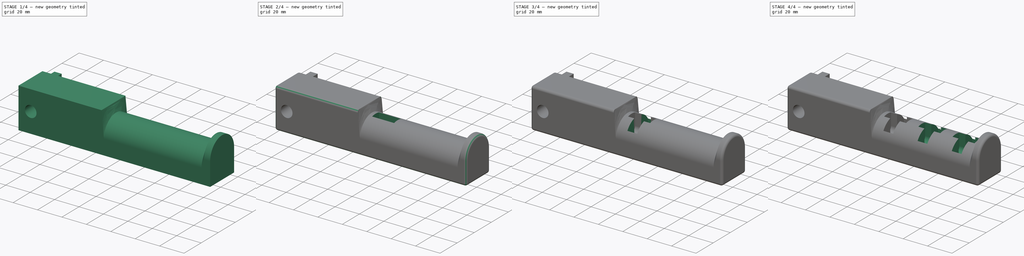
[diagram: build sequence overview — one tinted view per stage of 4, left to right]
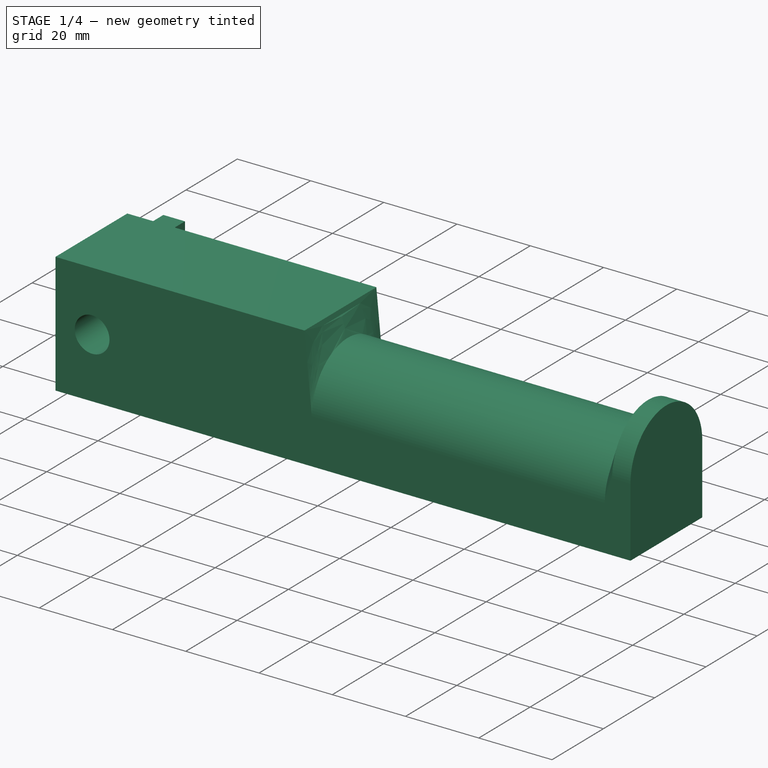
[diagram: stage 1 of 4 — iso view after this stage's code; geometry added in this stage tinted green]
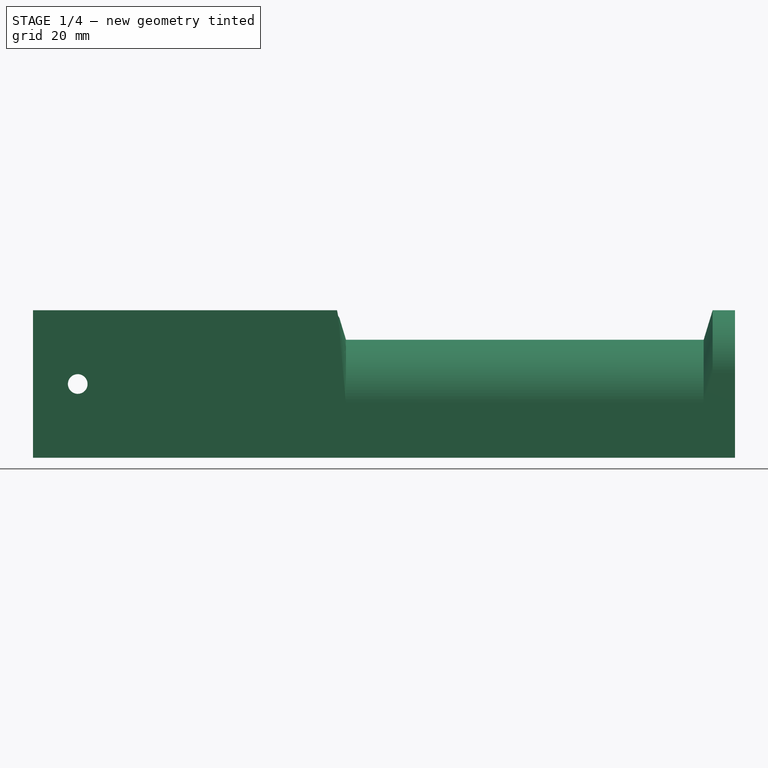
[diagram: stage 1 of 4 — front view after this stage's code; geometry added in this stage tinted green]
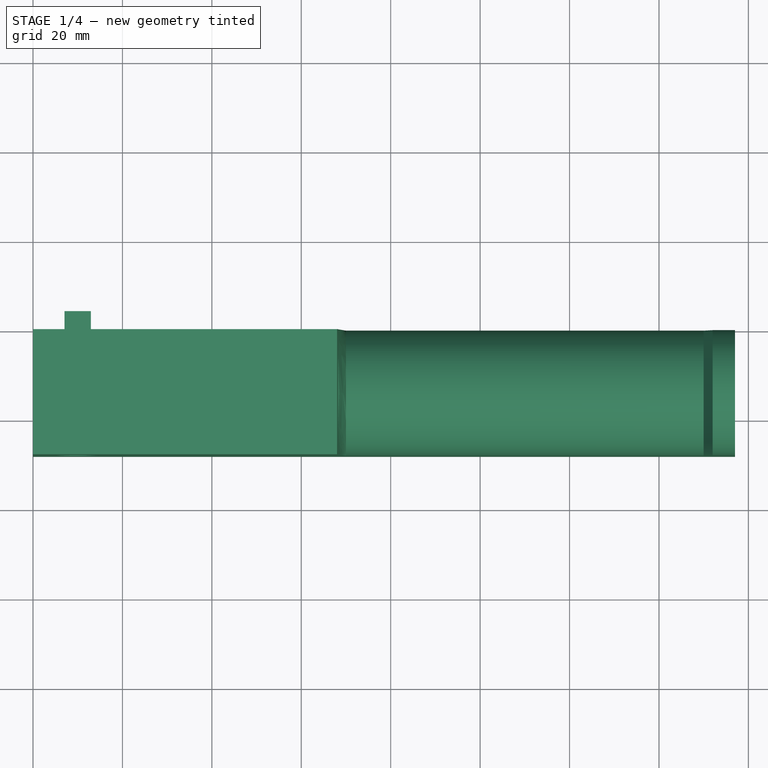
[diagram: stage 1 of 4 — top view after this stage's code; geometry added in this stage tinted green]
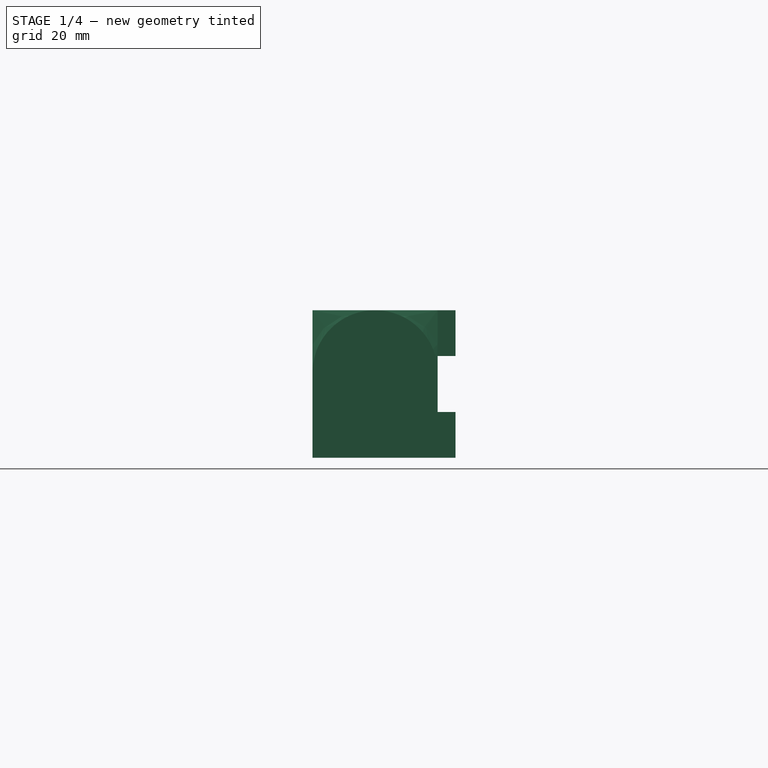
[diagram: stage 1 of 4 — right view after this stage's code; geometry added in this stage tinted green]
FCSTD DOCUMENT  (FreeCAD 0.18.4R)
Label: SpoolHolder
License: All rights reserved
LicenseURL: http://en.wikipedia.org/wiki/All_rights_reserved
objects: Sketcher::SketchObject×18, PartDesign::Pocket×8, PartDesign::Pad×2, PartDesign::Fillet×2, PartDesign::Body×2, PartDesign::AdditiveLoft×1, PartDesign::Chamfer×1, PartDesign::Plane×1, PartDesign::ShapeBinder×1, App::Part×1
note: 47 computed .brp shape members not serialized (recipe doc carries the construction recipe); baked Part::Feature solids carry a one-line shape summary decoded from their .brp

FEATURE [Sketcher::SketchObject] Sketch
  MapMode = 5
  Placement = pos=(0,0,0) rot=(0.57735,0.57735,0.57735;2.0944rad)
  Support = -> [YZ_Plane001]
  sketch-geometry (20):
    g0: LineSegment StartX=-28 StartY=17.3 StartZ=0 EndX=0 EndY=17.3 EndZ=0
    g1: LineSegment StartX=0 StartY=17.3 StartZ=0 EndX=0 EndY=-15.7 EndZ=0
    g2: LineSegment StartX=0 StartY=-15.7 StartZ=0 EndX=-28 EndY=-15.7 EndZ=0
    g3: LineSegment StartX=-28 StartY=-15.7 StartZ=0 EndX=-28 EndY=17.3 EndZ=0
    g4: LineSegment [constr] StartX=-14 StartY=17.3 StartZ=0 EndX=-14 EndY=-12.7 EndZ=0
    g5: Circle [constr] CenterX=-14 CenterY=-12.7 CenterZ=0 NormalX=0 NormalY=0 NormalZ=1 AngleXU=0 Radius=25
    g6: Circle CenterX=-14 CenterY=0.3 CenterZ=0 NormalX=0 NormalY=0 NormalZ=1 AngleXU=0 Radius=4
    g7: Circle CenterX=-14 CenterY=0.3 CenterZ=0 NormalX=0 NormalY=0 NormalZ=1 AngleXU=0 Radius=12
    g8: ArcOfCircle CenterX=-14 CenterY=-3.3 CenterZ=0 NormalX=0 NormalY=0 NormalZ=1 AngleXU=0 Radius=14 StartAngle=1e-16 EndAngle=3.14159
    g9: LineSegment [constr] StartX=-26 StartY=17.3 StartZ=0 EndX=-26 EndY=-15.7 EndZ=0
    g10: GeomPoint X=-14 Y=10.7 Z=0
    g11: GeomPoint X=-14 Y=12.3 Z=0
    g12: GeomPoint X=-14 Y=-15.7 Z=0
    g13: GeomPoint X=-14 Y=-11.7 Z=0
    g14: ArcOfCircle CenterX=-14 CenterY=3.3 CenterZ=0 NormalX=0 NormalY=0 NormalZ=1 AngleXU=0 Radius=14 StartAngle=1e-16 EndAngle=3.14159
    g15: LineSegment StartX=-18 StartY=10.1164 StartZ=0 EndX=-18 EndY=0.3 EndZ=0
    g16: LineSegment StartX=-10 StartY=10.1164 StartZ=0 EndX=-10 EndY=0.3 EndZ=0
    g17: GeomPoint X=0 Y=0 Z=0
    g18: LineSegment StartX=-26 StartY=3.9111 StartZ=0 EndX=-26 EndY=0.3 EndZ=0
    g19: LineSegment StartX=-2 StartY=3.9111 StartZ=0 EndX=-2 EndY=0.3 EndZ=0
  constraints (52):
    c: Horizontal(g0)
    c: Horizontal(g2)
    c: Vertical(g1)
    c: Vertical(g3)
    c: PointOnObject(g4,g0)
    c: Symmetric(g0,g0,g4)
    c: Coincident(g5,g4)
    c: Radius(g5) = 25
    c: PointOnObject(g6,g4)
    c: Coincident(g7,g6)
    c: Radius(g7) = 12
    c: Radius(g6) = 4
    c: Tangent(g5,g7)
    c: Tangent(g8,g1) = 1.5708
    c: Tangent(g8,g3) = 1.5708
    c: PointOnObject(g9,g0)
    c: PointOnObject(g9,g2)
    c: Vertical(g9)
    c: Tangent(g9,g7)
    c: DistanceX(g3,g9) = 2
    c: PointOnObject(g10,g8)
    c: PointOnObject(g11,g7)
    c: PointOnObject(g11,g4)
    c: PointOnObject(g10,g4)
    c: DistanceY(g10,g11) = 1.6
    c: DistanceY(g11,g4) = 5
    c: PointOnObject(g12,g2)
    c: PointOnObject(g12,g4)
    c: PointOnObject(g13,g7)
    c: PointOnObject(g13,g4)
    c: DistanceY(g12,g13) = 4
    c: Tangent(g14,g1) = 1.5708
    c: Tangent(g14,g3) = 1.5708
    c: Tangent(g14,g0)
    c: Coincident(g2,g3)
    c: Coincident(g1,g2)
    c: Coincident(g0,g1)
    c: Coincident(g0,g3)
    c: PointOnObject(g15,g8)
    c: Vertical(g15)
    c: PointOnObject(g16,g8)
    c: Vertical(g16)
    c: Tangent(g16,g6) = 1.5708
    c: Tangent(g15,g6) = -1.5708
    c: Symmetric(g14,g8,g17)
    c: Coincident(g17,g-1)  '__ANCHOR__'
    c: PointOnObject(g18,g8)
    c: Vertical(g18)
    c: PointOnObject(g19,g8)
    c: Vertical(g19)
    c: Tangent(g19,g7) = 1.5708
    c: Tangent(g18,g7) = -1.5708
FEATURE [Sketcher::SketchObject] Sketch001
  ExternalGeometry = -> [Sketch]
  MapMode = 5
  Placement = pos=(0,0,0) rot=(0.57735,0.57735,0.57735;2.0944rad)
  Support = -> [YZ_Plane]
  sketch-geometry (4):
    g0: LineSegment StartX=0 StartY=-15.7 StartZ=0 EndX=-28 EndY=-15.7 EndZ=0
    g1: LineSegment StartX=-28 StartY=-15.7 StartZ=0 EndX=-28 EndY=17.3 EndZ=0
    g2: LineSegment StartX=0 StartY=-15.7 StartZ=0 EndX=0 EndY=17.3 EndZ=0
    g3: LineSegment StartX=-28 StartY=17.3 StartZ=0 EndX=0 EndY=17.3 EndZ=0
  constraints (8):
    c: Coincident(g-3,g0)
    c: Coincident(g0,g-3)
    c: Coincident(g0,g1)
    c: Coincident(g0,g2)
    c: Coincident(g1,g-4)
    c: Coincident(g2,g-4)
    c: Coincident(g3,g1)
    c: Coincident(g3,g2)
FEATURE [Sketcher::SketchObject] Sketch002
  AttachmentOffset = pos=(0,0,68) rot=(0,0,1;0rad)
  ExternalGeometry = -> [Sketch]
  MapMode = 5
  Placement = pos=(68,-1.51e-14,1.51e-14) rot=(0.57735,0.57735,0.57735;2.0944rad)
  Support = -> [YZ_Plane001]
  sketch-geometry (4):
    g0: LineSegment StartX=0 StartY=-15.7 StartZ=0 EndX=-28 EndY=-15.7 EndZ=0
    g1: LineSegment StartX=-28 StartY=-15.7 StartZ=0 EndX=-28 EndY=17.3 EndZ=0
    g2: LineSegment StartX=0 StartY=-15.7 StartZ=0 EndX=0 EndY=17.3 EndZ=0
    g3: LineSegment StartX=-28 StartY=17.3 StartZ=0 EndX=0 EndY=17.3 EndZ=0
  constraints (8):
    c: Coincident(g-3,g0)
    c: Coincident(g0,g-3)
    c: Coincident(g0,g1)
    c: Coincident(g0,g2)
    c: Coincident(g1,g-4)
    c: Coincident(g2,g-4)
    c: Coincident(g3,g1)
    c: Coincident(g3,g2)
FEATURE [Sketcher::SketchObject] Sketch003
  AttachmentOffset = pos=(0,0,70) rot=(0,0,1;0rad)
  ExternalGeometry = -> [Sketch]
  MapMode = 5
  Placement = pos=(70,-1.55e-14,1.55e-14) rot=(0.57735,0.57735,0.57735;2.0944rad)
  Support = -> [YZ_Plane]
  sketch-geometry (4):
    g0: ArcOfCircle CenterX=-14 CenterY=-3.3 CenterZ=0 NormalX=0 NormalY=0 NormalZ=1 AngleXU=0 Radius=14 StartAngle=0 EndAngle=3.14159
    g1: LineSegment StartX=-28 StartY=-3.3 StartZ=0 EndX=-28 EndY=-15.7 EndZ=0
    g2: LineSegment StartX=-28 StartY=-15.7 StartZ=0 EndX=0 EndY=-15.7 EndZ=0
    g3: LineSegment StartX=0 StartY=-15.7 StartZ=0 EndX=-7.1e-15 EndY=-3.3 EndZ=0
  constraints (9):
    c: Coincident(g0,g1)
    c: Coincident(g0,g3)
    c: Coincident(g2,g3)
    c: Coincident(g1,g2)
    c: Coincident(g0,g-4)
    c: Coincident(g0,g-4)
    c: Coincident(g0,g-4)
    c: Coincident(g2,g-3)
    c: Coincident(g1,g-3)
FEATURE [Sketcher::SketchObject] Sketch004
  AttachmentOffset = pos=(0,0,150) rot=(0,0,1;0rad)
  ExternalGeometry = -> [Sketch]
  MapMode = 5
  Placement = pos=(150,-3.33e-14,3.33e-14) rot=(0.57735,0.57735,0.57735;2.0944rad)
  Support = -> [YZ_Plane001]
  sketch-geometry (4):
    g0: ArcOfCircle CenterX=-14 CenterY=-3.3 CenterZ=0 NormalX=0 NormalY=0 NormalZ=1 AngleXU=0 Radius=14 StartAngle=0 EndAngle=3.14159
    g1: LineSegment StartX=-28 StartY=-3.3 StartZ=0 EndX=-28 EndY=-15.7 EndZ=0
    g2: LineSegment StartX=-28 StartY=-15.7 StartZ=0 EndX=0 EndY=-15.7 EndZ=0
    g3: LineSegment StartX=0 StartY=-15.7 StartZ=0 EndX=-1.6e-14 EndY=-3.3 EndZ=0
  constraints (9):
    c: Coincident(g0,g1)
    c: Coincident(g0,g3)
    c: Coincident(g1,g2)
    c: Coincident(g2,g3)
    c: Coincident(g0,g-4)
    c: Coincident(g0,g-4)
    c: Coincident(g0,g-4)
    c: Coincident(g1,g-3)
    c: Coincident(g2,g-3)
FEATURE [Sketcher::SketchObject] Sketch005
  AttachmentOffset = pos=(0,0,152) rot=(0,0,1;0rad)
  ExternalGeometry = -> [Sketch]
  MapMode = 5
  Placement = pos=(152,-3.38e-14,3.38e-14) rot=(0.57735,0.57735,0.57735;2.0944rad)
  Support = -> [YZ_Plane]
  expr: AttachmentOffset.Base.z = Sketch004.AttachmentOffset.Base.z + 2mm
  sketch-geometry (4):
    g0: ArcOfCircle CenterX=-14 CenterY=3.3 CenterZ=0 NormalX=0 NormalY=0 NormalZ=1 AngleXU=0 Radius=14 StartAngle=1e-16 EndAngle=3.14159
    g1: LineSegment StartX=-28 StartY=3.3 StartZ=0 EndX=-28 EndY=-15.7 EndZ=0
    g2: LineSegment StartX=-28 StartY=-15.7 StartZ=0 EndX=0 EndY=-15.7 EndZ=0
    g3: LineSegment StartX=0 StartY=-15.7 StartZ=0 EndX=-1.6e-14 EndY=3.3 EndZ=0
  constraints (9):
    c: Coincident(g0,g1)
    c: Coincident(g0,g3)
    c: Coincident(g1,g2)
    c: Coincident(g1,g-3)
    c: Coincident(g2,g3)
    c: Coincident(g2,g-3)
    c: Coincident(g0,g-4)
    c: Coincident(g-4,g0)
    c: Coincident(g0,g-4)
FEATURE [Sketcher::SketchObject] Sketch006
  AttachmentOffset = pos=(0,0,157) rot=(0,0,1;0rad)
  ExternalGeometry = -> [Sketch]
  MapMode = 5
  Placement = pos=(157,-3.49e-14,3.49e-14) rot=(0.57735,0.57735,0.57735;2.0944rad)
  Support = -> [YZ_Plane001]
  expr: AttachmentOffset.Base.z = Sketch005.AttachmentOffset.Base.z + 5mm
  sketch-geometry (4):
    g0: ArcOfCircle CenterX=-14 CenterY=3.3 CenterZ=0 NormalX=0 NormalY=0 NormalZ=1 AngleXU=0 Radius=14 StartAngle=1e-16 EndAngle=3.14159
    g1: LineSegment StartX=-28 StartY=3.3 StartZ=0 EndX=-28 EndY=-15.7 EndZ=0
    g2: LineSegment StartX=-28 StartY=-15.7 StartZ=0 EndX=0 EndY=-15.7 EndZ=0
    g3: LineSegment StartX=0 StartY=-15.7 StartZ=0 EndX=-1.78e-14 EndY=3.3 EndZ=0
  constraints (9):
    c: Coincident(g0,g1)
    c: Coincident(g0,g3)
    c: Coincident(g1,g2)
    c: Coincident(g1,g-3)
    c: Coincident(g2,g3)
    c: Coincident(g2,g-3)
    c: Coincident(g0,g-4)
    c: Coincident(g0,g-4)
    c: Coincident(g0,g-4)
FEATURE [PartDesign::AdditiveLoft] AdditiveLoft
  Closed = true
  Placement = pos=(0,0,0) rot=(0.57735,0.57735,0.57735;2.0944rad)
  Profile = -> Sketch001
  Refine = true
  Ruled = true
  Sections = -> [Sketch002,Sketch003,Sketch004,Sketch005,Sketch006]
FEATURE [Sketcher::SketchObject] Sketch007
  ExternalGeometry = -> [Sketch]
  MapMode = 5
  Placement = pos=(0,0,0) rot=(1,0,0;1.5708rad)
  Support = -> [XZ_Plane001]
  sketch-geometry (19):
    g0: LineSegment StartX=20 StartY=-15.7 StartZ=0 EndX=20 EndY=17.3 EndZ=0
    g1: LineSegment StartX=-6.9e-15 StartY=17.3 StartZ=0 EndX=0 EndY=-15.7 EndZ=0
    g2: LineSegment [constr] StartX=10 StartY=17.3 StartZ=0 EndX=10 EndY=-15.7 EndZ=0
    g3: LineSegment StartX=7.05 StartY=17.3 StartZ=0 EndX=12.95 EndY=17.3 EndZ=0
    g4: LineSegment StartX=12.95 StartY=17.3 StartZ=0 EndX=12.95 EndY=7.05 EndZ=0
    g5: LineSegment StartX=12.95 StartY=7.05 StartZ=0 EndX=7.05 EndY=7.05 EndZ=0
    g6: LineSegment StartX=7.05 StartY=7.05 StartZ=0 EndX=7.05 EndY=17.3 EndZ=0
    g7: LineSegment StartX=7.05 StartY=-15.7 StartZ=0 EndX=12.95 EndY=-15.7 EndZ=0
    g8: LineSegment StartX=12.95 StartY=-15.7 StartZ=0 EndX=12.95 EndY=-5.45 EndZ=0
    g9: LineSegment StartX=12.95 StartY=-5.45 StartZ=0 EndX=7.05 EndY=-5.45 EndZ=0
    g10: LineSegment StartX=7.05 StartY=-5.45 StartZ=0 EndX=7.05 EndY=-15.7 EndZ=0
    g11: LineSegment [constr] StartX=7.05 StartY=7.05 StartZ=0 EndX=7.05 EndY=-5.45 EndZ=0
    g12: LineSegment [constr] StartX=12.95 StartY=7.05 StartZ=0 EndX=12.95 EndY=-5.45 EndZ=0
    g13: LineSegment StartX=-6.9e-15 StartY=17.3 StartZ=0 EndX=7.05 EndY=17.3 EndZ=0
    g14: LineSegment StartX=12.95 StartY=17.3 StartZ=0 EndX=20 EndY=17.3 EndZ=0
    g15: LineSegment StartX=0 StartY=-15.7 StartZ=0 EndX=7.05 EndY=-15.7 EndZ=0
    g16: LineSegment StartX=12.95 StartY=-15.7 StartZ=0 EndX=20 EndY=-15.7 EndZ=0
    g17: Circle CenterX=10 CenterY=0.8 CenterZ=0 NormalX=0 NormalY=0 NormalZ=1 AngleXU=0 Radius=2.2
    g18: Circle CenterX=10 CenterY=0.8 CenterZ=0 NormalX=0 NormalY=0 NormalZ=1 AngleXU=0 Radius=4.75
  constraints (48):
    c: Vertical(g0)
    c: DistanceX(g1,g0) = 20
    c: Coincident(g3,g4)
    c: Coincident(g4,g5)
    c: Coincident(g5,g6)
    c: Coincident(g6,g3)
    c: Horizontal(g5)
    c: Vertical(g4)
    c: Vertical(g6)
    c: Coincident(g7,g8)
    c: Coincident(g8,g9)
    c: Coincident(g9,g10)
    c: Coincident(g10,g7)
    c: Horizontal(g7)
    c: Horizontal(g9)
    c: Vertical(g8)
    c: Vertical(g10)
    c: Coincident(g11,g5)
    c: Coincident(g11,g9)
    c: Vertical(g11)
    c: Coincident(g12,g4)
    c: Coincident(g12,g8)
    c: Vertical(g12)
    c: Symmetric(g3,g3,g2)
    c: Symmetric(g1,g0,g2)
    c: Equal(g10,g6)
    c: DistanceX(g3,g3) = 5.9
    c: Coincident(g13,g1)
    c: Coincident(g13,g3)
    c: Horizontal(g13)
    c: Coincident(g14,g3)
    c: Coincident(g14,g0)
    c: Horizontal(g14)
    c: Coincident(g15,g1)
    c: Coincident(g15,g7)
    c: Horizontal(g15)
    c: Coincident(g16,g7)
    c: Coincident(g16,g0)
    c: Horizontal(g16)
    c: DistanceY(g11,g11) = 12.5
    c: Coincident(g1,g-3)
    c: Coincident(g-4,g1)
    c: PointOnObject(g2,g7)
    c: PointOnObject(g2,g3)
    c: Radius(g17) = 2.2
    c: Symmetric(g2,g2,g17)
    c: Coincident(g18,g17)
    c: Radius(g18) = 4.75
FEATURE [Sketcher::SketchObject] Sketch008
  ExternalGeometry = -> [Sketch007]
  MapMode = 5
  Placement = pos=(0,0,0) rot=(1,0,0;1.5708rad)
  Support = -> [XZ_Plane]
  sketch-geometry (8):
    g0: LineSegment StartX=7.05 StartY=17.3 StartZ=0 EndX=12.95 EndY=17.3 EndZ=0
    g1: LineSegment StartX=12.95 StartY=17.3 StartZ=0 EndX=12.95 EndY=7.05 EndZ=0
    g2: LineSegment StartX=12.95 StartY=7.05 StartZ=0 EndX=7.05 EndY=7.05 EndZ=0
    g3: LineSegment StartX=7.05 StartY=7.05 StartZ=0 EndX=7.05 EndY=17.3 EndZ=0
    g4: LineSegment StartX=7.05 StartY=-5.45 StartZ=0 EndX=12.95 EndY=-5.45 EndZ=0
    g5: LineSegment StartX=12.95 StartY=-5.45 StartZ=0 EndX=12.95 EndY=-15.7 EndZ=0
    g6: LineSegment StartX=12.95 StartY=-15.7 StartZ=0 EndX=7.05 EndY=-15.7 EndZ=0
    g7: LineSegment StartX=7.05 StartY=-15.7 StartZ=0 EndX=7.05 EndY=-5.45 EndZ=0
  constraints (20):
    c: Coincident(g0,g1)
    c: Coincident(g1,g2)
    c: Coincident(g2,g3)
    c: Coincident(g3,g0)
    c: Horizontal(g0)
    c: Horizontal(g2)
    c: Vertical(g1)
    c: Vertical(g3)
    c: Coincident(g0,g-5)
    c: Coincident(g1,g-6)
    c: Coincident(g4,g5)
    c: Coincident(g5,g6)
    c: Coincident(g6,g7)
    c: Coincident(g7,g4)
    c: Horizontal(g4)
    c: Horizontal(g6)
    c: Vertical(g5)
    c: Vertical(g7)
    c: Coincident(g4,g-3)
    c: Coincident(g5,g-4)
FEATURE [PartDesign::Pad] Pad
  BaseFeature = -> AdditiveLoft
  Length = 4
  Length2 = 100
  Placement = pos=(0,0,0) rot=(0.57735,0.57735,0.57735;2.0944rad)
  Profile = -> Sketch008
  Reversed = true
  Type = 0
FEATURE [Sketcher::SketchObject] Sketch009
  ExternalGeometry = -> [Sketch007]
  MapMode = 5
  Placement = pos=(0,0,0) rot=(1,0,0;1.5708rad)
  Support = -> [XZ_Plane001]
  sketch-geometry (1):
    g0: Circle CenterX=10 CenterY=0.8 CenterZ=0 NormalX=0 NormalY=0 NormalZ=1 AngleXU=0 Radius=2.2
  constraints (2):
    c: Coincident(g0,g-3)
    c: Equal(g0,g-3)
FEATURE [PartDesign::Pocket] Pocket
  BaseFeature = -> Pad
  Length = 5
  Length2 = 100
  Placement = pos=(0,0,0) rot=(0.57735,0.57735,0.57735;2.0944rad)
  Profile = -> Sketch009
  Reversed = true
  Type = 1
FEATURE [Sketcher::SketchObject] Sketch010
  AttachmentOffset = pos=(0,0,4) rot=(0,0,1;0rad)
  ExternalGeometry = -> [Sketch007]
  MapMode = 5
  Placement = pos=(0,-4,-9e-16) rot=(1,0,0;1.5708rad)
  Support = -> [XZ_Plane]
  sketch-geometry (1):
    g0: Circle CenterX=10 CenterY=0.8 CenterZ=0 NormalX=0 NormalY=0 NormalZ=1 AngleXU=0 Radius=4.75
  constraints (2):
    c: Coincident(g0,g-3)
    c: Equal(g0,g-3)
FEATURE [PartDesign::Pocket] Pocket001
  BaseFeature = -> Pocket
  Length = 5
  Length2 = 100
  Placement = pos=(0,0,0) rot=(0.57735,0.57735,0.57735;2.0944rad)
  Profile = -> Sketch010
  Refine = true
  Reversed = true
  Type = 1
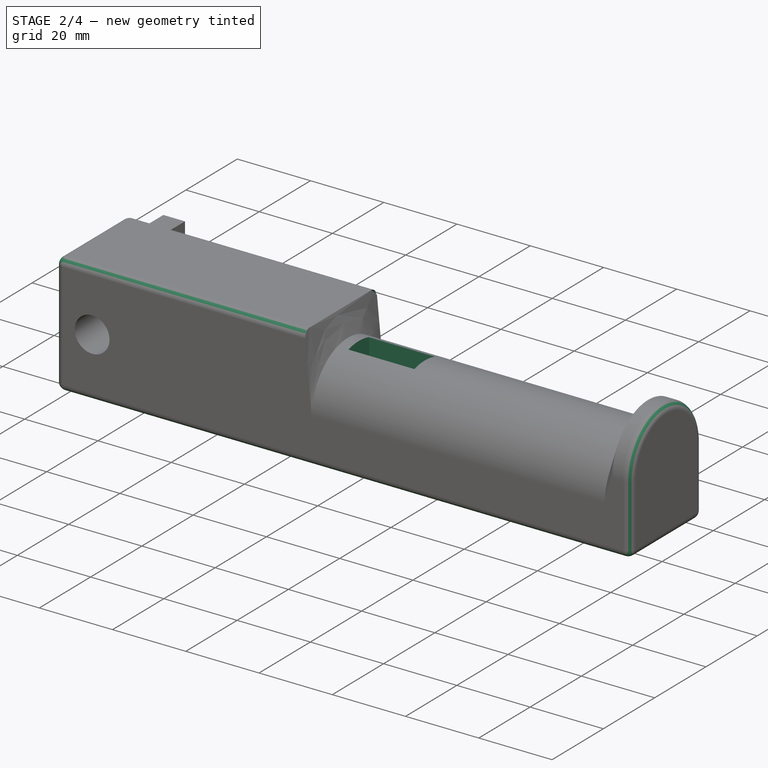
[diagram: stage 2 of 4 — iso view after this stage's code; geometry added in this stage tinted green]
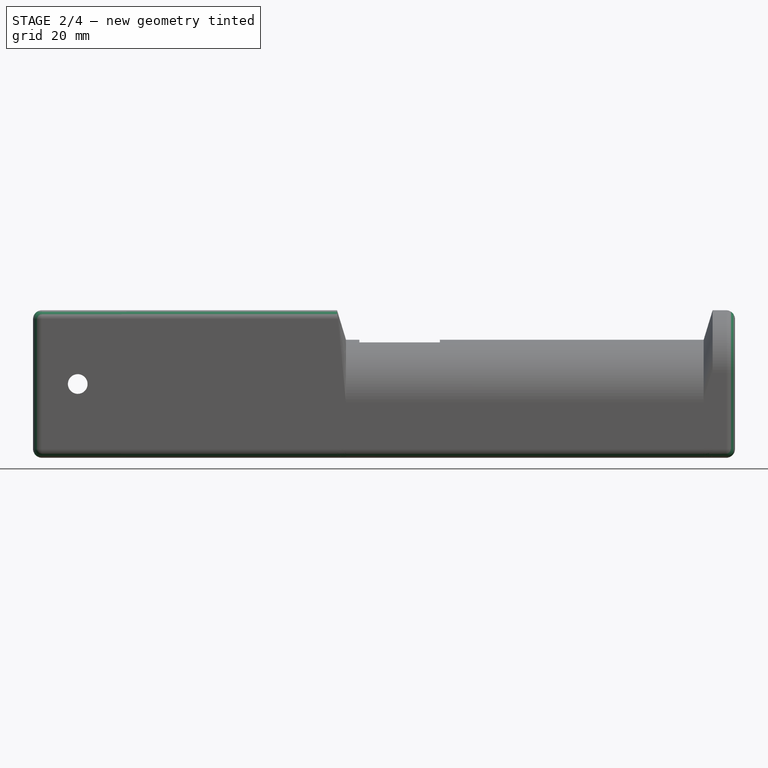
[diagram: stage 2 of 4 — front view after this stage's code; geometry added in this stage tinted green]
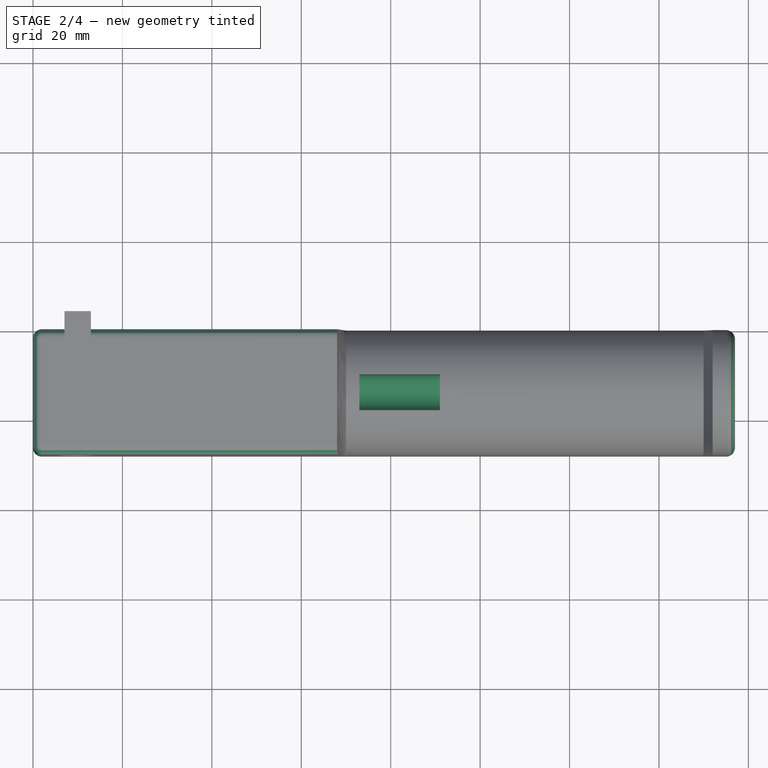
[diagram: stage 2 of 4 — top view after this stage's code; geometry added in this stage tinted green]
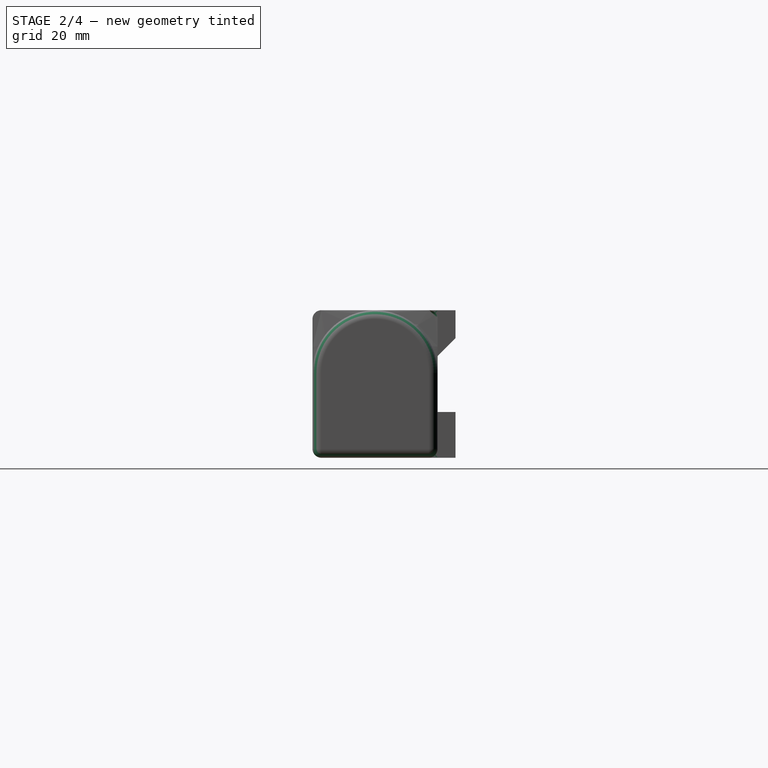
[diagram: stage 2 of 4 — right view after this stage's code; geometry added in this stage tinted green]
FEATURE [PartDesign::Fillet] Fillet
  Base = -> Pocket001 [Edge6,Edge18,Edge5,Edge17,Edge10,Edge9,Face1,Face27]
  BaseFeature = -> Pocket001
  Placement = pos=(0,0,0) rot=(0.57735,0.57735,0.57735;2.0944rad)
  Radius = 2
FEATURE [PartDesign::Chamfer] Chamfer
  Base = -> Fillet [Edge102]
  BaseFeature = -> Fillet
  Placement = pos=(0,0,0) rot=(0.57735,0.57735,0.57735;2.0944rad)
  Size = 3.999
  expr: Size = Pad.Length - 0.001mm
FEATURE [PartDesign::Plane] DatumPlane
  Length = 45.0824
  MapMode = 2
  Placement = pos=(70,-1.6e-14,1.6e-14) rot=(0.57735,0.57735,0.57735;2.0944rad)
  ResizeMode = 0
  Support = -> [Sketch003]
  Width = 40.0824
FEATURE [Sketcher::SketchObject] Sketch011
  AttachmentOffset = pos=(0,0,3) rot=(0,0,1;0rad)
  ExternalGeometry = -> [Sketch]
  MapMode = 5
  Placement = pos=(73,-1.6e-14,1.6e-14) rot=(0.57735,0.57735,0.57735;2.0944rad)
  Support = -> [DatumPlane]
  sketch-geometry (4):
    g0: ArcOfCircle CenterX=-14 CenterY=0.3 CenterZ=0 NormalX=0 NormalY=0 NormalZ=1 AngleXU=0 Radius=4 StartAngle=3.14159 EndAngle=6.28319
    g1: ArcOfCircle CenterX=-14 CenterY=-3.3 CenterZ=0 NormalX=0 NormalY=0 NormalZ=1 AngleXU=0 Radius=14 StartAngle=1.28104 EndAngle=1.86055
    g2: LineSegment StartX=-18 StartY=10.1164 StartZ=0 EndX=-18 EndY=0.3 EndZ=0
    g3: LineSegment StartX=-10 StartY=10.1164 StartZ=0 EndX=-10 EndY=0.3 EndZ=0
  constraints (10):
    c: Coincident(g1,g2)
    c: Coincident(g0,g2)
    c: Coincident(g1,g3)
    c: Coincident(g0,g3)
    c: Coincident(g1,g-6)
    c: Coincident(g1,g-4)
    c: Coincident(g1,g-5)
    c: Coincident(g0,g-6)
    c: Coincident(g0,g-4)
    c: Coincident(g0,g-3)
FEATURE [PartDesign::Pocket] Pocket002
  BaseFeature = -> Chamfer
  Length = 18
  Length2 = 100
  Placement = pos=(0,0,0) rot=(0.57735,0.57735,0.57735;2.0944rad)
  Profile = -> Sketch011
  Reversed = true
  Type = 0
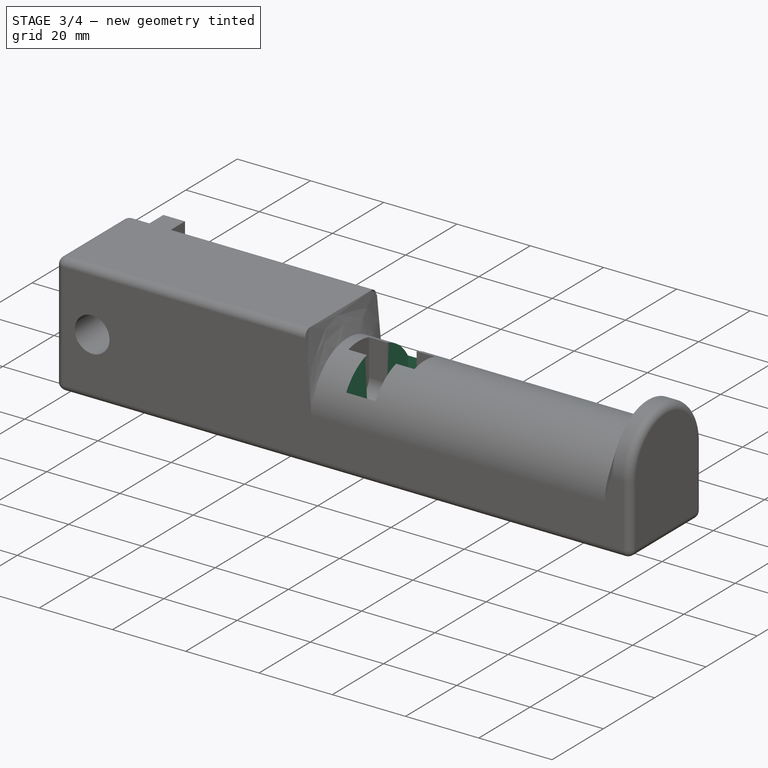
[diagram: stage 3 of 4 — iso view after this stage's code; geometry added in this stage tinted green]
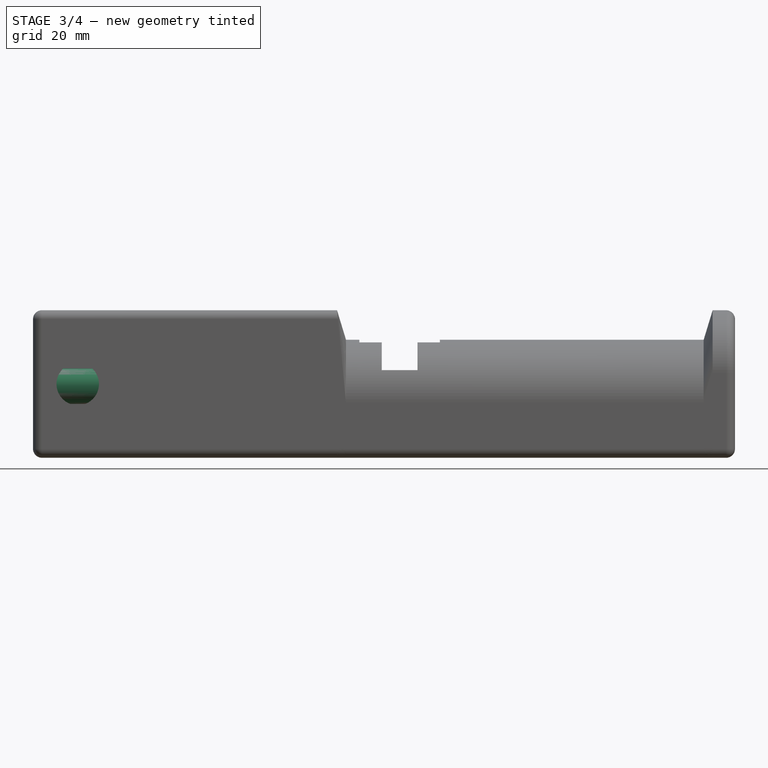
[diagram: stage 3 of 4 — front view after this stage's code; geometry added in this stage tinted green]
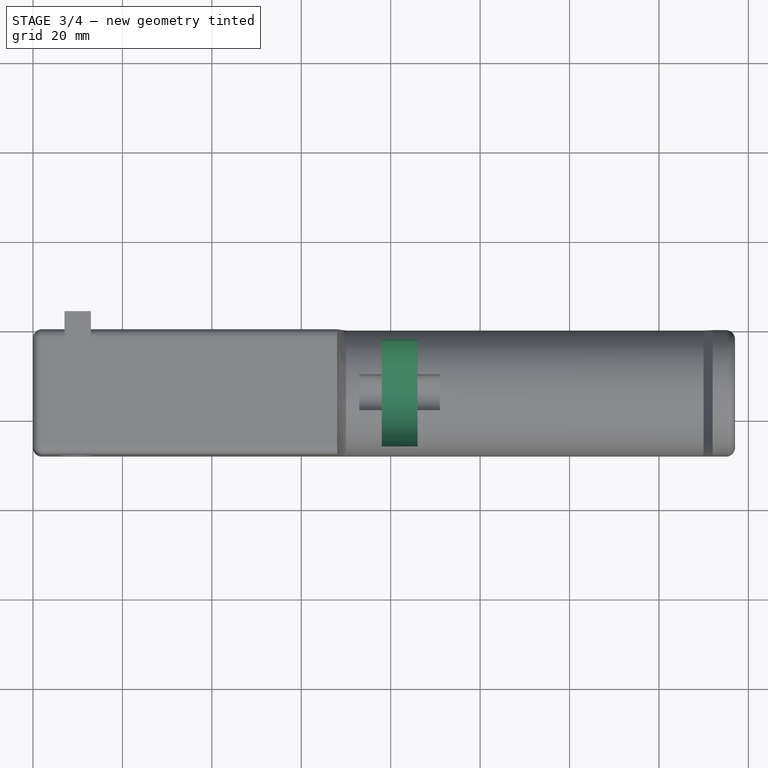
[diagram: stage 3 of 4 — top view after this stage's code; geometry added in this stage tinted green]
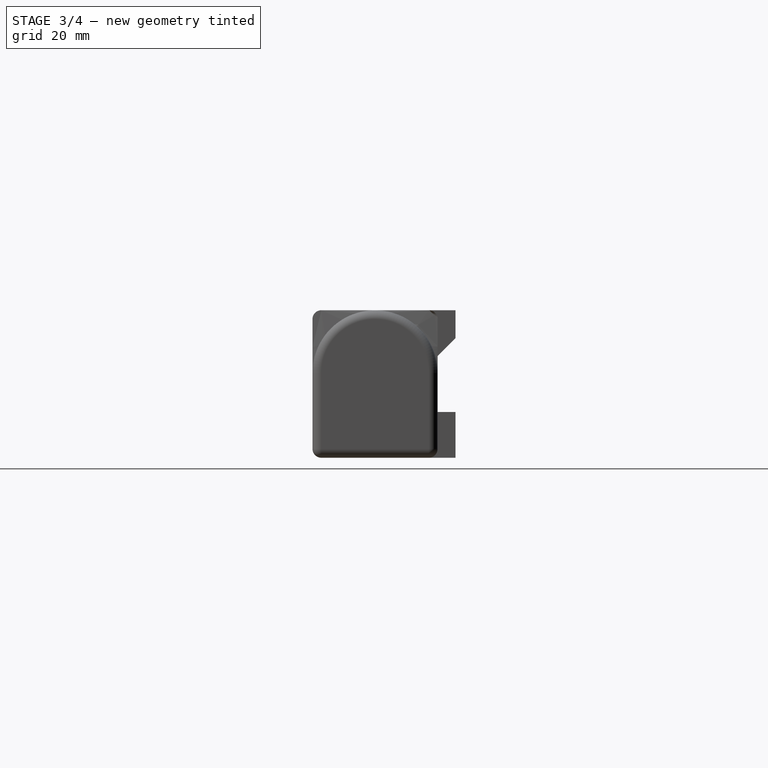
[diagram: stage 3 of 4 — right view after this stage's code; geometry added in this stage tinted green]
FEATURE [Sketcher::SketchObject] Sketch012
  AttachmentOffset = pos=(0,0,12) rot=(0,0,1;0rad)
  ExternalGeometry = -> [Sketch]
  MapMode = 5
  Placement = pos=(82,-1.6e-14,1.6e-14) rot=(0.57735,0.57735,0.57735;2.0944rad)
  Support = -> [DatumPlane]
  expr: AttachmentOffset.Base.z = Sketch011.AttachmentOffset.Base.z + Pocket002.Length / 2
  sketch-geometry (4):
    g0: ArcOfCircle CenterX=-14 CenterY=-3.3 CenterZ=0 NormalX=0 NormalY=0 NormalZ=1 AngleXU=0 Radius=14 StartAngle=0.5411 EndAngle=2.60049
    g1: ArcOfCircle CenterX=-14 CenterY=0.3 CenterZ=0 NormalX=0 NormalY=0 NormalZ=1 AngleXU=0 Radius=12 StartAngle=3.14159 EndAngle=6.28319
    g2: LineSegment StartX=-26 StartY=3.9111 StartZ=0 EndX=-26 EndY=0.3 EndZ=0
    g3: LineSegment StartX=-2 StartY=0.3 StartZ=0 EndX=-2 EndY=3.9111 EndZ=0
  constraints (10):
    c: Coincident(g0,g-6)
    c: Coincident(g0,g-4)
    c: Coincident(g0,g-5)
    c: Coincident(g1,g-4)
    c: Coincident(g1,g-5)
    c: Coincident(g1,g-3)
    c: Coincident(g2,g0)
    c: Coincident(g2,g1)
    c: Coincident(g3,g1)
    c: Coincident(g3,g0)
FEATURE [PartDesign::Pocket] Pocket003
  BaseFeature = -> Pocket002
  Length = 8
  Length2 = 100
  Midplane = true
  Placement = pos=(0,0,0) rot=(0.57735,0.57735,0.57735;2.0944rad)
  Profile = -> Sketch012
  Type = 0
FEATURE [PartDesign::Body] Body
  Group = -> [Sketch,Sketch007,DatumPlane,Sketch001,Sketch002,Sketch003,Sketch004,Sketch005,Sketch006,AdditiveLoft,Sketch008,Pad,Sketch009,Pocket,Sketch010,Pocket001,Fillet,Chamfer,Sketch011,Pocket002,Sketch012,Pocket003,Sketch013,Pocket004,Sketch014,Pocket005,Sketch015,Pocket006,Sketch016,Pocket007]
  Origin = -> Origin001
  Tip = -> Pocket007
FEATURE [PartDesign::ShapeBinder] ShapeBinder
  Placement = pos=(0,0,0) rot=(0.57735,0.57735,0.57735;2.0944rad)
  Support = -> [Sketch]
  TraceSupport = false
FEATURE [Sketcher::SketchObject] Sketch017
  ExternalGeometry = -> [ShapeBinder]
  MapMode = 5
  Placement = pos=(0,0,0) rot=(0.57735,0.57735,0.57735;2.0944rad)
  Support = -> [YZ_Plane002]
  sketch-geometry (2):
    g0: Circle CenterX=-14 CenterY=0.3 CenterZ=0 NormalX=0 NormalY=0 NormalZ=1 AngleXU=0 Radius=3.95
    g1: LineSegment StartX=-14 StartY=4.3 StartZ=0 EndX=-14 EndY=4.25 EndZ=0
  constraints (6):
    c: Coincident(g0,g-3)
    c: PointOnObject(g1,g-3)
    c: PointOnObject(g1,g0)
    c: Vertical(g1)
    c: DistanceY(g1,g1) = 0.05
    c: PointOnObject(g0,g1)
FEATURE [PartDesign::Pad] Pad001
  Length = 17.5
  Length2 = 100
  Placement = pos=(0,0,0) rot=(0.57735,0.57735,0.57735;2.0944rad)
  Profile = -> Sketch017
  Type = 0
  expr: Length = Pocket002.Length - 0.5mm
FEATURE [PartDesign::Fillet] Fillet001
  Base = -> Pad001 [Face1]
  BaseFeature = -> Pad001
  Placement = pos=(0,0,0) rot=(0.57735,0.57735,0.57735;2.0944rad)
  Radius = 0.8
FEATURE [PartDesign::Body] Body001
  Group = -> [ShapeBinder,Sketch017,Pad001,Fillet001]
  Origin = -> Origin002
  Tip = -> Fillet001
FEATURE [App::Part] Part
  Group = -> [Body,Body001]
  Origin = -> Origin
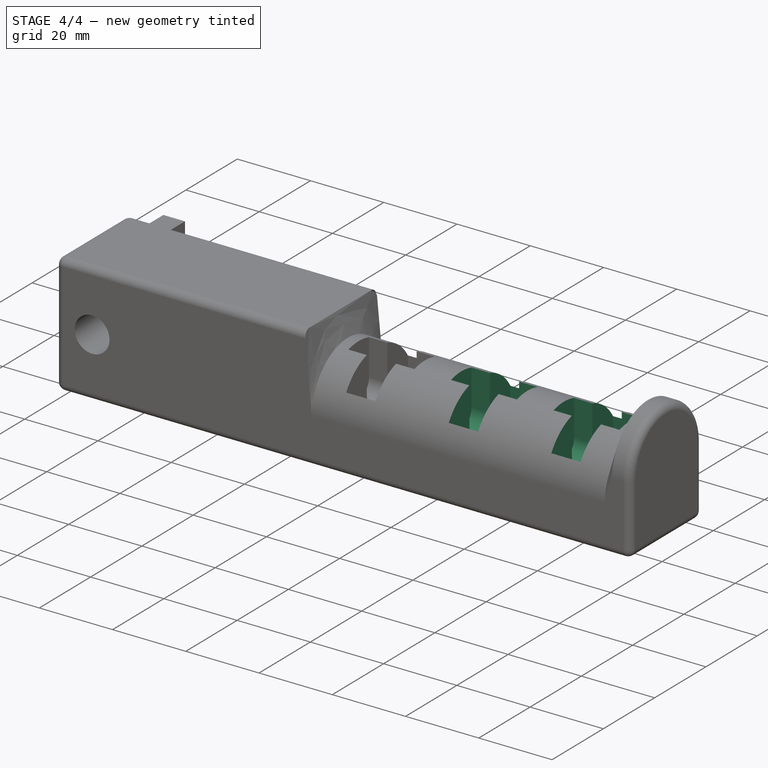
[diagram: stage 4 of 4 — iso view after this stage's code; geometry added in this stage tinted green]
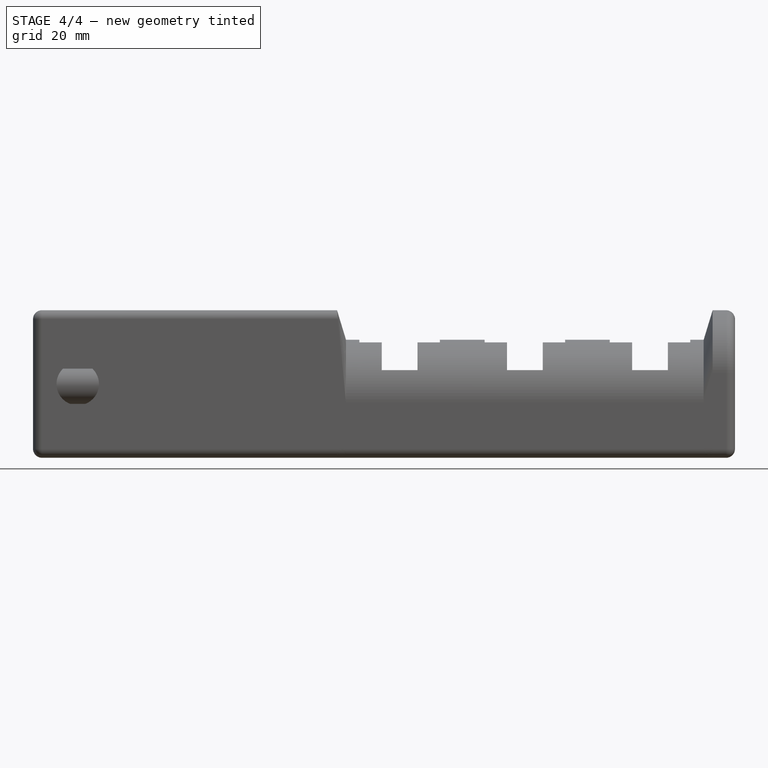
[diagram: stage 4 of 4 — front view after this stage's code; geometry added in this stage tinted green]
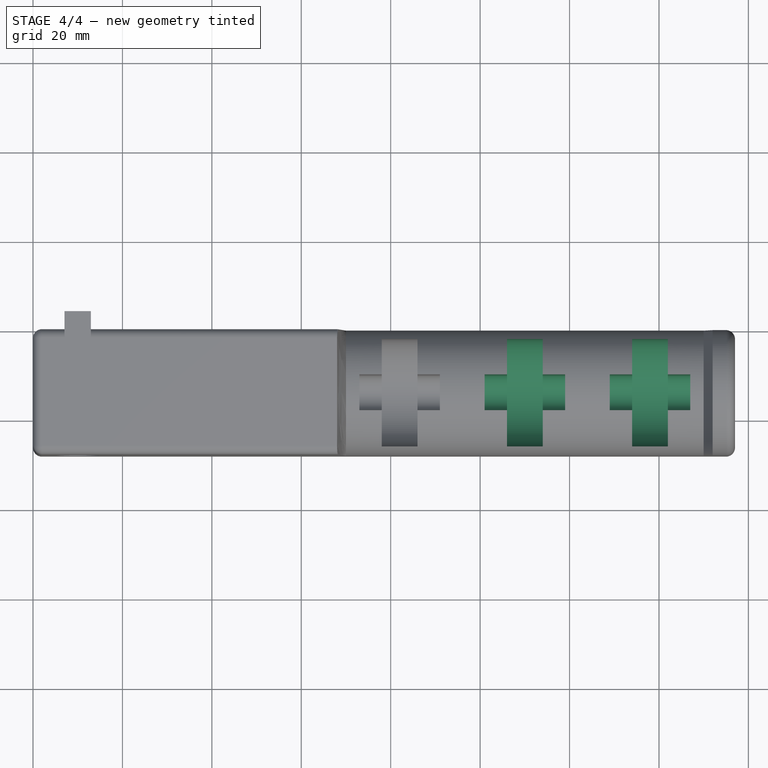
[diagram: stage 4 of 4 — top view after this stage's code; geometry added in this stage tinted green]
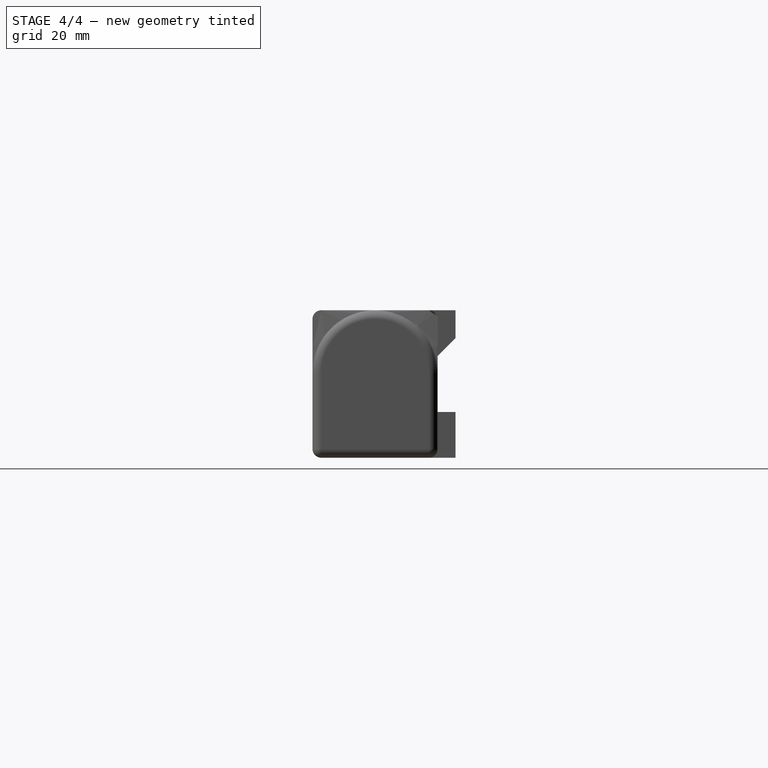
[diagram: stage 4 of 4 — right view after this stage's code; geometry added in this stage tinted green]
FEATURE [Sketcher::SketchObject] Sketch013
  AttachmentOffset = pos=(0,0,77) rot=(0,0,1;0rad)
  ExternalGeometry = -> [Sketch]
  MapMode = 5
  Placement = pos=(147,-1.6e-14,1.6e-14) rot=(0.57735,0.57735,0.57735;2.0944rad)
  Support = -> [DatumPlane]
  expr: AttachmentOffset.Base.z = Sketch004.AttachmentOffset.Base.z - Sketch003.AttachmentOffset.Base.z - Sketch011.AttachmentOffset.Base.z
  sketch-geometry (4):
    g0: ArcOfCircle CenterX=-14 CenterY=0.3 CenterZ=0 NormalX=0 NormalY=0 NormalZ=1 AngleXU=0 Radius=4 StartAngle=3.14159 EndAngle=6.28319
    g1: ArcOfCircle CenterX=-14 CenterY=-3.3 CenterZ=0 NormalX=0 NormalY=0 NormalZ=1 AngleXU=0 Radius=14 StartAngle=1.28104 EndAngle=1.86055
    g2: LineSegment StartX=-18 StartY=10.1164 StartZ=0 EndX=-18 EndY=0.3 EndZ=0
    g3: LineSegment StartX=-10 StartY=10.1164 StartZ=0 EndX=-10 EndY=0.3 EndZ=0
  constraints (10):
    c: Coincident(g1,g2)
    c: Coincident(g1,g3)
    c: Coincident(g0,g2)
    c: Coincident(g0,g3)
    c: Coincident(g1,g-6)
    c: Coincident(g1,g-4)
    c: Coincident(g1,g-5)
    c: Coincident(g0,g-6)
    c: Coincident(g0,g-4)
    c: Coincident(g0,g-3)
FEATURE [PartDesign::Pocket] Pocket004
  BaseFeature = -> Pocket003
  Length = 18
  Length2 = 100
  Placement = pos=(0,0,0) rot=(0.57735,0.57735,0.57735;2.0944rad)
  Profile = -> Sketch013
  Type = 0
  expr: Length = Pocket002.Length
FEATURE [Sketcher::SketchObject] Sketch014
  AttachmentOffset = pos=(0,0,68) rot=(0,0,1;0rad)
  ExternalGeometry = -> [Sketch]
  MapMode = 5
  Placement = pos=(138,-1.6e-14,1.6e-14) rot=(0.57735,0.57735,0.57735;2.0944rad)
  Support = -> [DatumPlane]
  expr: AttachmentOffset.Base.z = Sketch013.AttachmentOffset.Base.z - Pocket004.Length / 2
  sketch-geometry (4):
    g0: ArcOfCircle CenterX=-14 CenterY=0.3 CenterZ=0 NormalX=0 NormalY=0 NormalZ=1 AngleXU=0 Radius=12 StartAngle=3.14159 EndAngle=6.28319
    g1: ArcOfCircle CenterX=-14 CenterY=-3.3 CenterZ=0 NormalX=0 NormalY=0 NormalZ=1 AngleXU=0 Radius=14 StartAngle=0.5411 EndAngle=2.60049
    g2: LineSegment StartX=-26 StartY=3.9111 StartZ=0 EndX=-26 EndY=0.3 EndZ=0
    g3: LineSegment StartX=-2 StartY=3.9111 StartZ=0 EndX=-2 EndY=0.3 EndZ=0
  constraints (10):
    c: Coincident(g0,g-6)
    c: Coincident(g0,g-4)
    c: Coincident(g0,g-5)
    c: Coincident(g1,g-3)
    c: Coincident(g1,g-4)
    c: Coincident(g1,g-5)
    c: Coincident(g2,g1)
    c: Coincident(g2,g0)
    c: Coincident(g3,g1)
    c: Coincident(g3,g0)
FEATURE [PartDesign::Pocket] Pocket005
  BaseFeature = -> Pocket004
  Length = 8
  Length2 = 100
  Midplane = true
  Placement = pos=(0,0,0) rot=(0.57735,0.57735,0.57735;2.0944rad)
  Profile = -> Sketch014
  Type = 0
  expr: Length = Pocket003.Length
FEATURE [Sketcher::SketchObject] Sketch015
  AttachmentOffset = pos=(0,0,40) rot=(0,0,1;0rad)
  ExternalGeometry = -> [Sketch]
  MapMode = 5
  Placement = pos=(110,-1.6e-14,1.6e-14) rot=(0.57735,0.57735,0.57735;2.0944rad)
  Support = -> [DatumPlane]
  expr: AttachmentOffset.Base.z = (Sketch011.AttachmentOffset.Base.z + Sketch013.AttachmentOffset.Base.z) / 2
  sketch-geometry (4):
    g0: ArcOfCircle CenterX=-14 CenterY=0.3 CenterZ=0 NormalX=0 NormalY=0 NormalZ=1 AngleXU=0 Radius=4 StartAngle=3.14159 EndAngle=6.28319
    g1: ArcOfCircle CenterX=-14 CenterY=-3.3 CenterZ=0 NormalX=0 NormalY=0 NormalZ=1 AngleXU=0 Radius=14 StartAngle=1.28104 EndAngle=1.86055
    g2: LineSegment StartX=-18 StartY=10.1164 StartZ=0 EndX=-18 EndY=0.3 EndZ=0
    g3: LineSegment StartX=-10 StartY=10.1164 StartZ=0 EndX=-10 EndY=0.3 EndZ=0
  constraints (10):
    c: Coincident(g1,g2)
    c: Coincident(g1,g3)
    c: Coincident(g0,g2)
    c: Coincident(g0,g3)
    c: Coincident(g1,g-5)
    c: Coincident(g1,g-4)
    c: Coincident(g1,g-6)
    c: Coincident(g0,g-5)
    c: Coincident(g0,g-4)
    c: Coincident(g0,g-3)
FEATURE [PartDesign::Pocket] Pocket006
  BaseFeature = -> Pocket005
  Length = 18
  Length2 = 100
  Midplane = true
  Placement = pos=(0,0,0) rot=(0.57735,0.57735,0.57735;2.0944rad)
  Profile = -> Sketch015
  Type = 0
  expr: Length = Pocket002.Length
FEATURE [Sketcher::SketchObject] Sketch016
  AttachmentOffset = pos=(0,0,40) rot=(0,0,1;0rad)
  ExternalGeometry = -> [Sketch]
  MapMode = 5
  Placement = pos=(110,-1.6e-14,1.6e-14) rot=(0.57735,0.57735,0.57735;2.0944rad)
  Support = -> [DatumPlane]
  expr: AttachmentOffset.Base.z = Sketch015.AttachmentOffset.Base.z
  sketch-geometry (4):
    g0: ArcOfCircle CenterX=-14 CenterY=-3.3 CenterZ=0 NormalX=0 NormalY=0 NormalZ=1 AngleXU=0 Radius=14 StartAngle=0.5411 EndAngle=2.60049
    g1: ArcOfCircle CenterX=-14 CenterY=0.3 CenterZ=0 NormalX=0 NormalY=0 NormalZ=1 AngleXU=0 Radius=12 StartAngle=3.14159 EndAngle=6.28319
    g2: LineSegment StartX=-26 StartY=3.9111 StartZ=0 EndX=-26 EndY=0.3 EndZ=0
    g3: LineSegment StartX=-2 StartY=3.9111 StartZ=0 EndX=-2 EndY=0.3 EndZ=0
  constraints (10):
    c: Coincident(g0,g-3)
    c: Coincident(g0,g-5)
    c: Coincident(g0,g-6)
    c: Coincident(g1,g-4)
    c: Coincident(g1,g-5)
    c: Coincident(g1,g-6)
    c: Coincident(g2,g0)
    c: Coincident(g2,g1)
    c: Coincident(g3,g0)
    c: Coincident(g3,g1)
FEATURE [PartDesign::Pocket] Pocket007
  BaseFeature = -> Pocket006
  Length = 8
  Length2 = 100
  Midplane = true
  Placement = pos=(0,0,0) rot=(0.57735,0.57735,0.57735;2.0944rad)
  Profile = -> Sketch016
  Type = 0
  expr: Length = Pocket003.Length
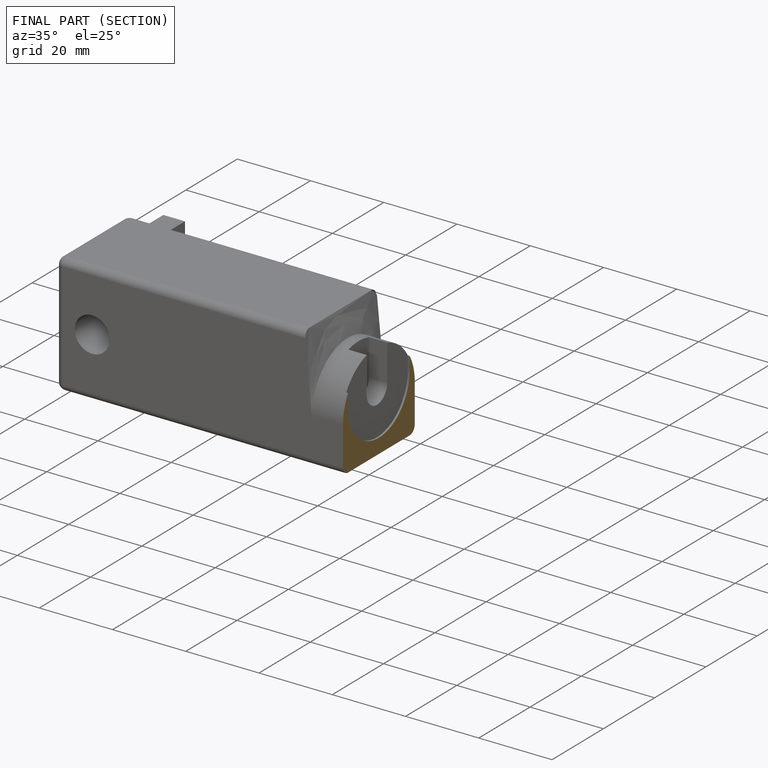
[diagram: finished part — half-section view (interior)]
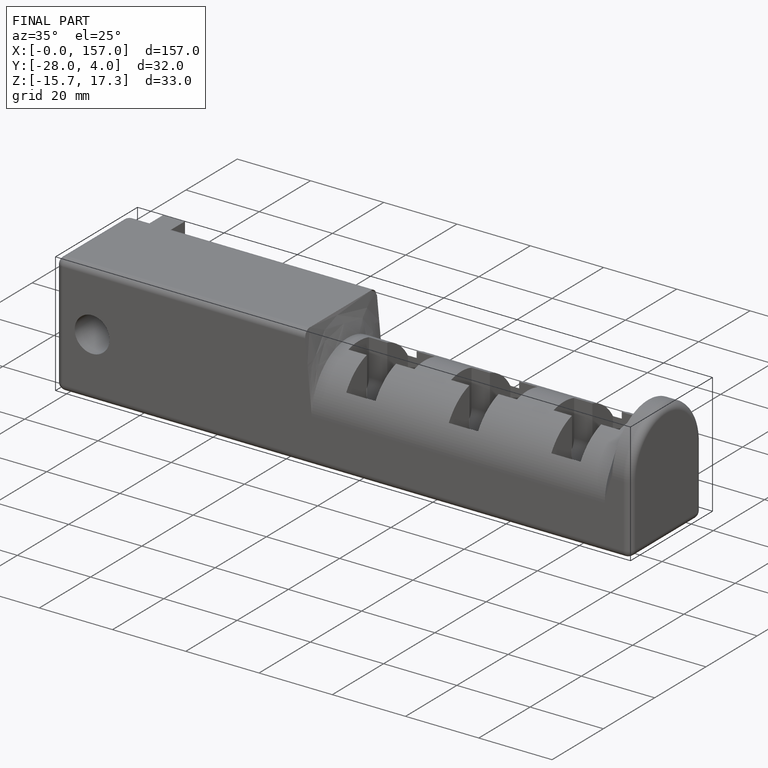
[diagram: finished part — iso view with bounding-box wireframe]
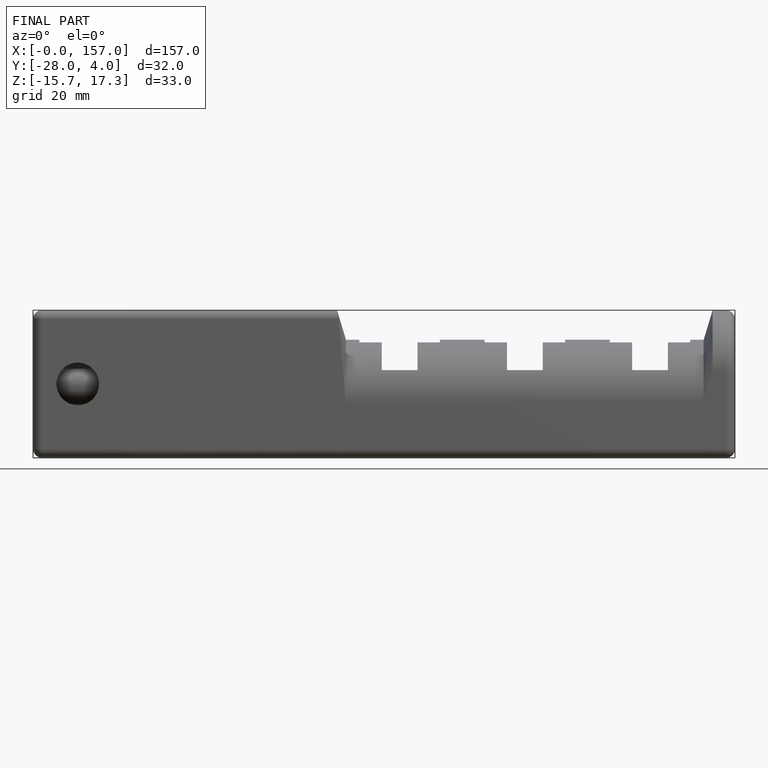
[diagram: finished part — front view with bounding-box wireframe]
